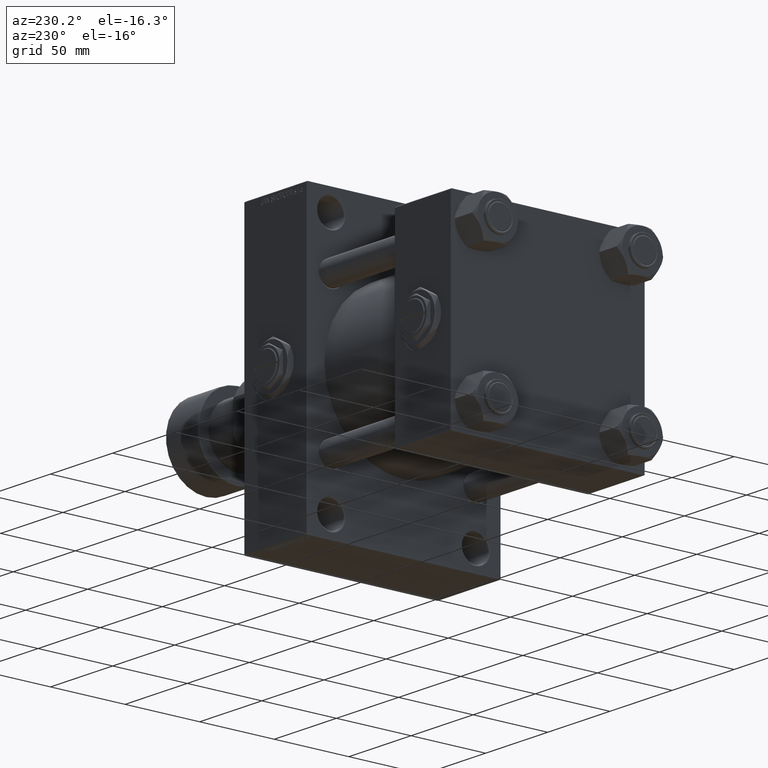
[diagram: clean part render]
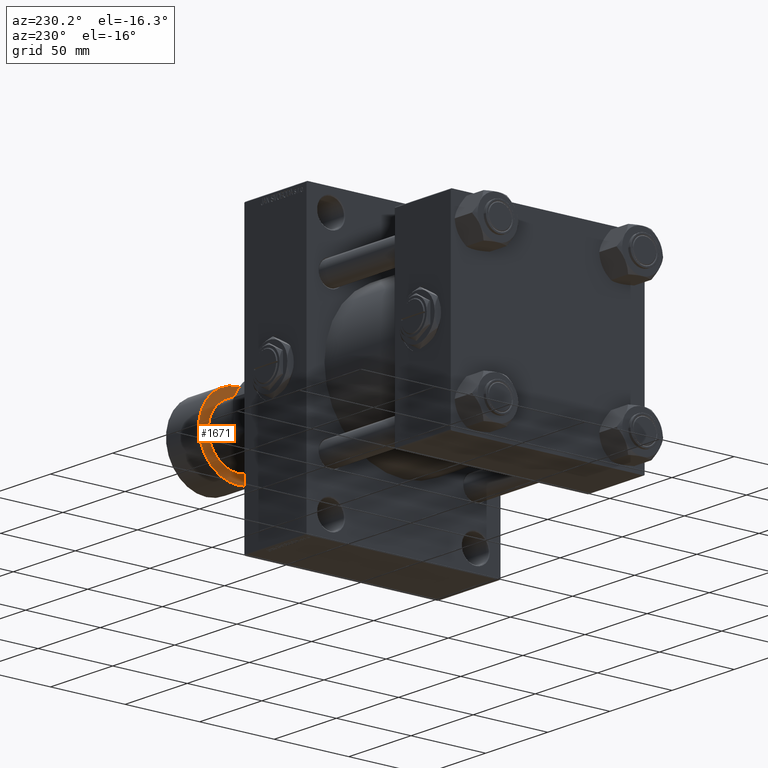
[diagram: same view with one face highlighted and labeled with its STEP entity id]
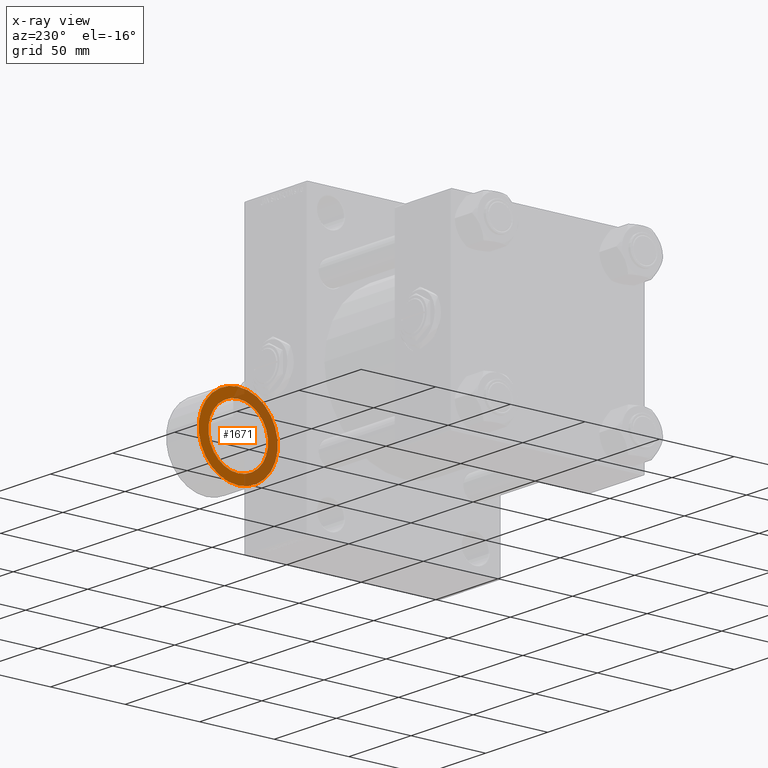
[diagram: x-ray of the same camera — body ghosted, the highlighted face saturated]
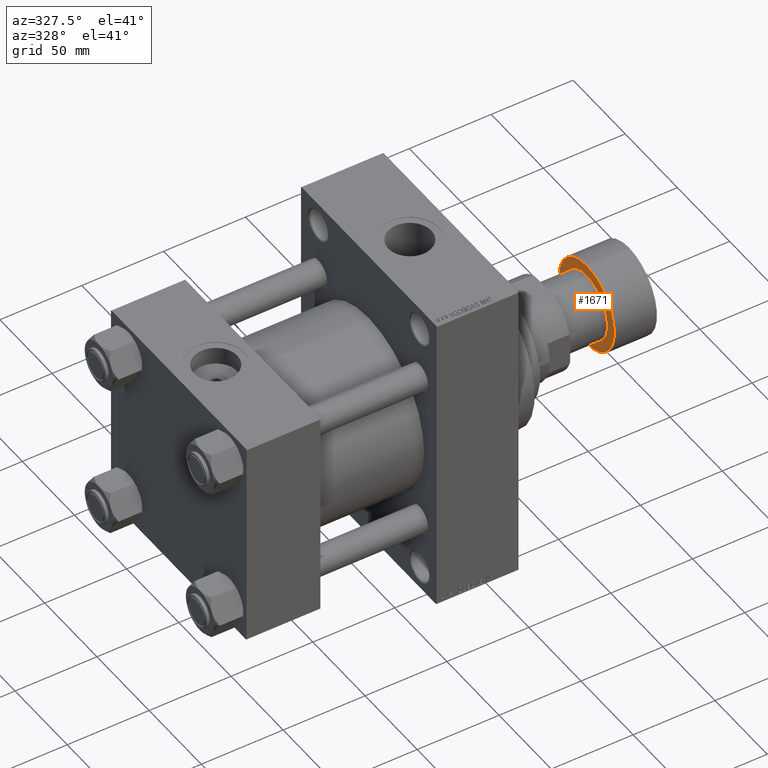
[diagram: same view with one face highlighted and labeled with its STEP entity id]
A machine part, auxiliary view. The second image highlights one B-rep face of the part: STEP entity #1671.
The next image is the same camera in x-ray: the body ghosted, the highlighted face saturated — about 48% of this face is hidden behind the body in this view.
A second angle (auxiliary view) of the same face is appended — the face is thin or edge-on in the first view.
In plain terms, the highlighted planar face has unit normal (1, 0, 0).
Its self-contained STEP definition (entity closure, byte-faithful):
#275 = CARTESIAN_POINT ( 'NONE',  ( 0.000000000000000000, 0.000000000000000000, -26.00000000000000000 ) ) ;
#383 = DIRECTION ( 'NONE',  ( 0.000000000000000000, 0.000000000000000000, -1.000000000000000000 ) ) ;
#626 = DIRECTION ( 'NONE',  ( -1.000000000000000000, 0.000000000000000000, 0.000000000000000000 ) ) ;
#1396 = AXIS2_PLACEMENT_3D ( 'NONE', #30732, #38895, #7971 ) ;
#1671 = ADVANCED_FACE ( 'NONE', ( #45304, #19487 ), #31242, .F. ) ;
#2172 = EDGE_CURVE ( 'NONE', #44847, #31979, #34913, .T. ) ;
#3907 = EDGE_CURVE ( 'NONE', #23272, #22015, #9533, .T. ) ;
#3967 = CARTESIAN_POINT ( 'NONE',  ( 0.000000000000000000, 0.000000000000000000, -26.00000000000000000 ) ) ;
#4498 = EDGE_LOOP ( 'NONE', ( #39512, #7180 ) ) ;
#4935 = AXIS2_PLACEMENT_3D ( 'NONE', #275, #34772, #15358 ) ;
#5266 = CARTESIAN_POINT ( 'NONE',  ( 26.50000000000000000, 0.000000000000000000, -26.00000000000000000 ) ) ;
#6813 = CARTESIAN_POINT ( 'NONE',  ( -26.50000000000000000, 3.275930187719169552E-15, -26.00000000000000000 ) ) ;
#7180 = ORIENTED_EDGE ( 'NONE', *, *, #2172, .T. ) ;
#7971 = DIRECTION ( 'NONE',  ( 1.000000000000000000, 0.000000000000000000, -0.000000000000000000 ) ) ;
#8185 = CIRCLE ( 'NONE', #4935, 20.00000000000000000 ) ;
#8926 = EDGE_CURVE ( 'NONE', #22015, #23272, #8185, .T. ) ;
#9533 = CIRCLE ( 'NONE', #39045, 20.00000000000000000 ) ;
#13787 = DIRECTION ( 'NONE',  ( -0.000000000000000000, -0.000000000000000000, -1.000000000000000000 ) ) ;
#15358 = DIRECTION ( 'NONE',  ( -1.000000000000000000, 0.000000000000000000, 0.000000000000000000 ) ) ;
#19487 = FACE_BOUND ( 'NONE', #41779, .T. ) ;
#21739 = CARTESIAN_POINT ( 'NONE',  ( 0.000000000000000000, 0.000000000000000000, -26.00000000000000000 ) ) ;
#22015 = VERTEX_POINT ( 'NONE', #39153 ) ;
#23272 = VERTEX_POINT ( 'NONE', #34247 ) ;
#25821 = DIRECTION ( 'NONE',  ( 1.000000000000000000, 0.000000000000000000, 0.000000000000000000 ) ) ;
#28383 = AXIS2_PLACEMENT_3D ( 'NONE', #21739, #37318, #25821 ) ;
#29397 = DIRECTION ( 'NONE',  ( 1.000000000000000000, 0.000000000000000000, 0.000000000000000000 ) ) ;
#30012 = AXIS2_PLACEMENT_3D ( 'NONE', #40383, #13787, #29397 ) ;
#30732 = CARTESIAN_POINT ( 'NONE',  ( 0.000000000000000000, 0.000000000000000000, -26.00000000000000000 ) ) ;
#31242 = PLANE ( 'NONE',  #1396 ) ;
#31339 = ORIENTED_EDGE ( 'NONE', *, *, #8926, .F. ) ;
#31979 = VERTEX_POINT ( 'NONE', #5266 ) ;
#34247 = CARTESIAN_POINT ( 'NONE',  ( 20.00000000000000000, 0.000000000000000000, -26.00000000000000000 ) ) ;
#34772 = DIRECTION ( 'NONE',  ( 0.000000000000000000, 0.000000000000000000, -1.000000000000000000 ) ) ;
#34913 = CIRCLE ( 'NONE', #28383, 26.50000000000000000 ) ;
#37318 = DIRECTION ( 'NONE',  ( -0.000000000000000000, -0.000000000000000000, -1.000000000000000000 ) ) ;
#37512 = EDGE_CURVE ( 'NONE', #31979, #44847, #45512, .T. ) ;
#38895 = DIRECTION ( 'NONE',  ( 0.000000000000000000, 0.000000000000000000, 1.000000000000000000 ) ) ;
#39045 = AXIS2_PLACEMENT_3D ( 'NONE', #3967, #383, #626 ) ;
#39153 = CARTESIAN_POINT ( 'NONE',  ( -20.00000000000000000, 2.449293598294706513E-15, -26.00000000000000000 ) ) ;
#39512 = ORIENTED_EDGE ( 'NONE', *, *, #37512, .T. ) ;
#40383 = CARTESIAN_POINT ( 'NONE',  ( 0.000000000000000000, 0.000000000000000000, -26.00000000000000000 ) ) ;
#41779 = EDGE_LOOP ( 'NONE', ( #42115, #31339 ) ) ;
#42115 = ORIENTED_EDGE ( 'NONE', *, *, #3907, .F. ) ;
#44847 = VERTEX_POINT ( 'NONE', #6813 ) ;
#45304 = FACE_OUTER_BOUND ( 'NONE', #4498, .T. ) ;
#45512 = CIRCLE ( 'NONE', #30012, 26.50000000000000000 ) ;